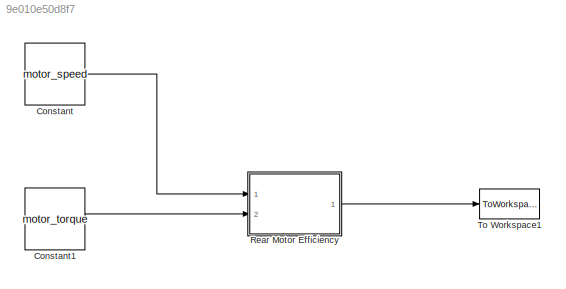
MODEL slx_9e010e50d8f7
KIND model
CONFIG AbsTol = auto
CONFIG EnableMultiTasking = off
CONFIG FixedStep = auto
CONFIG MaxStep = auto
CONFIG MinStep = auto
CONFIG RelTol = 1e-3
CONFIG SampleTimeConstraint = Unconstrained
CONFIG Solver = VariableStepAuto
CONFIG SolverName = VariableStepAuto
CONFIG StartTime = 0.0
CONFIG StopTime = 10.0
BLOCK [Constant] Constant
  Value = motor_speed
BLOCK [Constant] Constant1
  Value = motor_torque
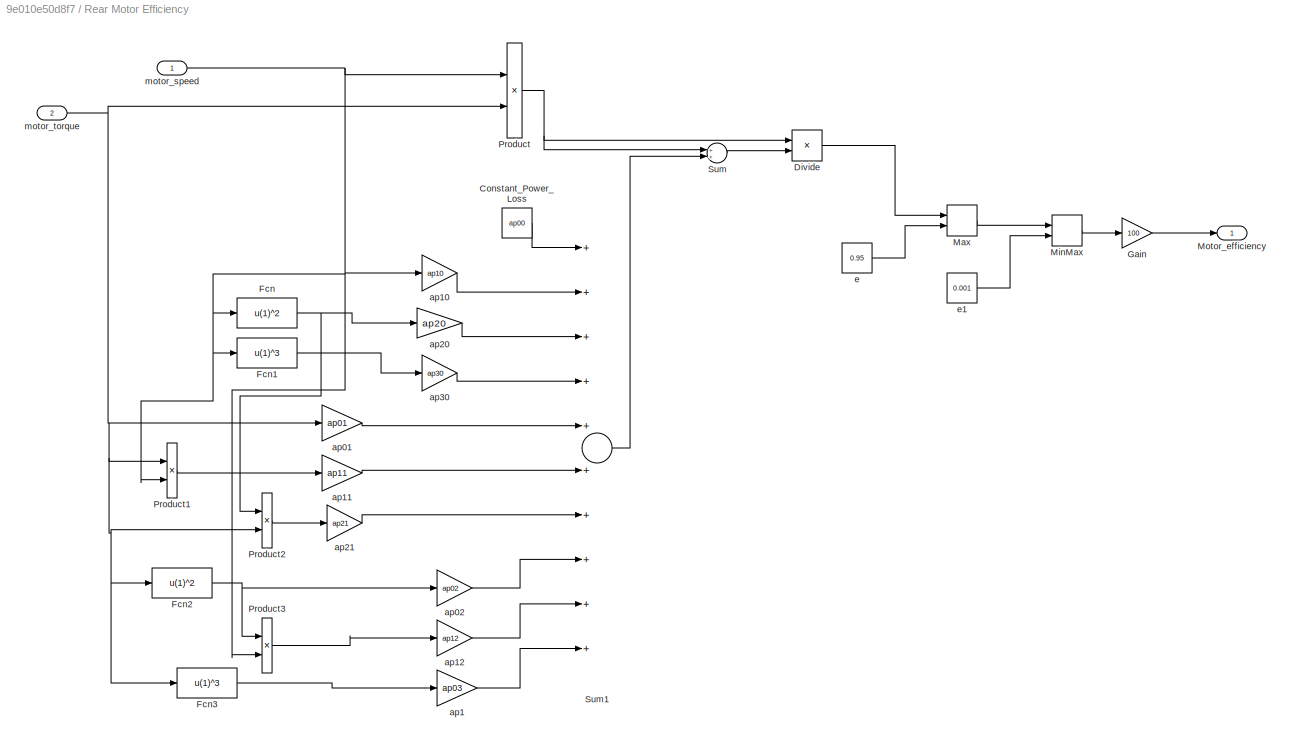
BLOCK [SubSystem] Rear Motor Efficiency
  Ports = [2, 1]
  RequestExecContextInheritance = off
  Variant = off
BLOCK [Constant] Rear Motor Efficiency/Constant_Power_Loss
  Value = ap00
BLOCK [Product] Rear Motor Efficiency/Divide
  InputSameDT = off
  Inputs = */
  OutDataTypeStr = Inherit: Inherit via internal rule
  Ports = [2, 1]
  RndMeth = Floor
  SaturateOnIntegerOverflow = off
BLOCK [Fcn] Rear Motor Efficiency/Fcn
  Expr = u(1)^2
BLOCK [Fcn] Rear Motor Efficiency/Fcn1
  Expr = u(1)^3
BLOCK [Fcn] Rear Motor Efficiency/Fcn2
  Expr = u(1)^2
BLOCK [Fcn] Rear Motor Efficiency/Fcn3
  Expr = u(1)^3
BLOCK [Gain] Rear Motor Efficiency/Gain
  Gain = 100
  OutDataTypeStr = Inherit: Inherit via internal rule
  ParamDataTypeStr = Inherit: Inherit via internal rule
  SaturateOnIntegerOverflow = off
BLOCK [MinMax] Rear Motor Efficiency/Max
  InputSameDT = off
  Inputs = 2
  Ports = [2, 1]
  SaturateOnIntegerOverflow = off
BLOCK [MinMax] Rear Motor Efficiency/MinMax
  Function = max
  InputSameDT = off
  Inputs = 2
  Ports = [2, 1]
  SaturateOnIntegerOverflow = off
BLOCK [Outport] Rear Motor Efficiency/Motor_efficiency
  IconDisplay = Port number
BLOCK [Product] Rear Motor Efficiency/Product
  InputSameDT = off
  OutDataTypeStr = Inherit: Inherit via internal rule
  Ports = [2, 1]
  RndMeth = Floor
  SaturateOnIntegerOverflow = off
BLOCK [Product] Rear Motor Efficiency/Product1
  InputSameDT = off
  OutDataTypeStr = Inherit: Inherit via internal rule
  Ports = [2, 1]
  RndMeth = Floor
  SaturateOnIntegerOverflow = off
BLOCK [Product] Rear Motor Efficiency/Product2
  InputSameDT = off
  OutDataTypeStr = Inherit: Inherit via internal rule
  Ports = [2, 1]
  RndMeth = Floor
  SaturateOnIntegerOverflow = off
BLOCK [Product] Rear Motor Efficiency/Product3
  InputSameDT = off
  OutDataTypeStr = Inherit: Inherit via internal rule
  Ports = [2, 1]
  RndMeth = Floor
  SaturateOnIntegerOverflow = off
BLOCK [Sum] Rear Motor Efficiency/Sum
  InputSameDT = off
  OutDataTypeStr = Inherit: Inherit via internal rule
  Ports = [2, 1]
  SaturateOnIntegerOverflow = off
BLOCK [Sum] Rear Motor Efficiency/Sum1
  InputSameDT = off
  Inputs = ++++++++++
  OutDataTypeStr = Inherit: Inherit via internal rule
  Ports = [10, 1]
  SaturateOnIntegerOverflow = off
BLOCK [Gain] Rear Motor Efficiency/ap01
  Gain = ap01
  OutDataTypeStr = Inherit: Inherit via internal rule
  ParamDataTypeStr = Inherit: Inherit via internal rule
  SaturateOnIntegerOverflow = off
BLOCK [Gain] Rear Motor Efficiency/ap02
  Gain = ap02
  OutDataTypeStr = Inherit: Inherit via internal rule
  ParamDataTypeStr = Inherit: Inherit via internal rule
  SaturateOnIntegerOverflow = off
BLOCK [Gain] Rear Motor Efficiency/ap1
  Gain = ap03
  OutDataTypeStr = Inherit: Inherit via internal rule
  ParamDataTypeStr = Inherit: Inherit via internal rule
  SaturateOnIntegerOverflow = off
BLOCK [Gain] Rear Motor Efficiency/ap10
  Gain = ap10
  OutDataTypeStr = Inherit: Inherit via internal rule
  ParamDataTypeStr = Inherit: Inherit via internal rule
  SaturateOnIntegerOverflow = off
BLOCK [Gain] Rear Motor Efficiency/ap11
  Gain = ap11
  OutDataTypeStr = Inherit: Inherit via internal rule
  ParamDataTypeStr = Inherit: Inherit via internal rule
  SaturateOnIntegerOverflow = off
BLOCK [Gain] Rear Motor Efficiency/ap12
  Gain = ap12
  OutDataTypeStr = Inherit: Inherit via internal rule
  ParamDataTypeStr = Inherit: Inherit via internal rule
  SaturateOnIntegerOverflow = off
BLOCK [Gain] Rear Motor Efficiency/ap20
  Gain = ap20
  OutDataTypeStr = Inherit: Inherit via internal rule
  ParamDataTypeStr = Inherit: Inherit via internal rule
  SaturateOnIntegerOverflow = off
BLOCK [Gain] Rear Motor Efficiency/ap21
  Gain = ap21
  OutDataTypeStr = Inherit: Inherit via internal rule
  ParamDataTypeStr = Inherit: Inherit via internal rule
  SaturateOnIntegerOverflow = off
BLOCK [Gain] Rear Motor Efficiency/ap30
  Gain = ap30
  OutDataTypeStr = Inherit: Inherit via internal rule
  ParamDataTypeStr = Inherit: Inherit via internal rule
  SaturateOnIntegerOverflow = off
BLOCK [Constant] Rear Motor Efficiency/e
  Value = 0.95
BLOCK [Constant] Rear Motor Efficiency/e1
  Value = 0.001
BLOCK [Inport] Rear Motor Efficiency/motor_speed
  IconDisplay = Port number
BLOCK [Inport] Rear Motor Efficiency/motor_torque
  IconDisplay = Port number
  Port = 2
BLOCK [ToWorkspace] To Workspace1
  FixptAsFi = on
  MaxDataPoints = 1
  Ports = [1]
  SampleTime = -1
  Save2DSignal = 2-D array (concatenate along first dimension)
  VariableName = Rear_Efficiency
LINE Constant1:1 -> Rear Motor Efficiency:2
LINE Constant:1 -> Rear Motor Efficiency:1
LINE Rear Motor Efficiency/Constant_Power_Loss:1 -> Rear Motor Efficiency/Sum1:1
LINE Rear Motor Efficiency/Divide:1 -> Rear Motor Efficiency/Max:1
LINE Rear Motor Efficiency/Fcn1:1 -> Rear Motor Efficiency/ap30:1
NET Rear Motor Efficiency/Fcn2:1 -> Rear Motor Efficiency/Product3:1, Rear Motor Efficiency/ap02:1
LINE Rear Motor Efficiency/Fcn3:1 -> Rear Motor Efficiency/ap1:1
NET Rear Motor Efficiency/Fcn:1 -> Rear Motor Efficiency/Product2:1, Rear Motor Efficiency/ap20:1
LINE Rear Motor Efficiency/Gain:1 -> Rear Motor Efficiency/Motor_efficiency:1
LINE Rear Motor Efficiency/Max:1 -> Rear Motor Efficiency/MinMax:1
LINE Rear Motor Efficiency/MinMax:1 -> Rear Motor Efficiency/Gain:1
LINE Rear Motor Efficiency/Product1:1 -> Rear Motor Efficiency/ap11:1
LINE Rear Motor Efficiency/Product2:1 -> Rear Motor Efficiency/ap21:1
LINE Rear Motor Efficiency/Product3:1 -> Rear Motor Efficiency/ap12:1
NET Rear Motor Efficiency/Product:1 -> Rear Motor Efficiency/Divide:1, Rear Motor Efficiency/Sum:1
LINE Rear Motor Efficiency/Sum1:1 -> Rear Motor Efficiency/Sum:2
LINE Rear Motor Efficiency/Sum:1 -> Rear Motor Efficiency/Divide:2
LINE Rear Motor Efficiency/ap01:1 -> Rear Motor Efficiency/Sum1:5
LINE Rear Motor Efficiency/ap02:1 -> Rear Motor Efficiency/Sum1:8
LINE Rear Motor Efficiency/ap10:1 -> Rear Motor Efficiency/Sum1:2
LINE Rear Motor Efficiency/ap11:1 -> Rear Motor Efficiency/Sum1:6
LINE Rear Motor Efficiency/ap12:1 -> Rear Motor Efficiency/Sum1:9
LINE Rear Motor Efficiency/ap1:1 -> Rear Motor Efficiency/Sum1:10
LINE Rear Motor Efficiency/ap20:1 -> Rear Motor Efficiency/Sum1:3
LINE Rear Motor Efficiency/ap21:1 -> Rear Motor Efficiency/Sum1:7
LINE Rear Motor Efficiency/ap30:1 -> Rear Motor Efficiency/Sum1:4
LINE Rear Motor Efficiency/e1:1 -> Rear Motor Efficiency/MinMax:2
LINE Rear Motor Efficiency/e:1 -> Rear Motor Efficiency/Max:2
NET Rear Motor Efficiency/motor_speed:1 -> Rear Motor Efficiency/Fcn1:1, Rear Motor Efficiency/Fcn:1, Rear Motor Efficiency/Product1:2, Rear Motor Efficiency/Product3:2, Rear Motor Efficiency/Product:1, Rear Motor Efficiency/ap10:1
NET Rear Motor Efficiency/motor_torque:1 -> Rear Motor Efficiency/Fcn2:1, Rear Motor Efficiency/Fcn3:1, Rear Motor Efficiency/Product1:1, Rear Motor Efficiency/Product2:2, Rear Motor Efficiency/Product:2, Rear Motor Efficiency/ap01:1
LINE Rear Motor Efficiency:1 -> To Workspace1:1
note: NET lines group one-source signal fan-out (src -> all destinations, sorted); 1:1 wires keep LINE
